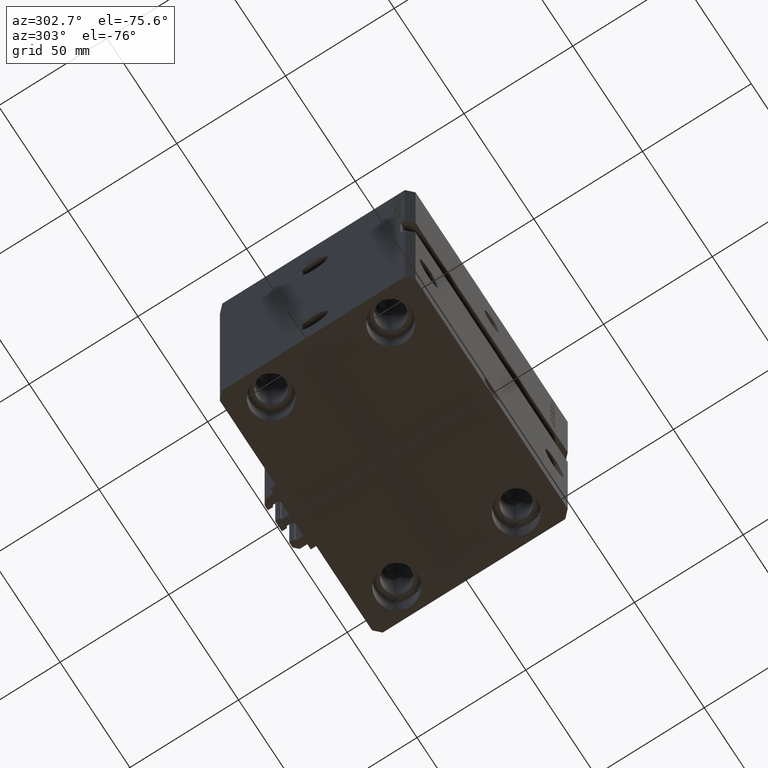
[diagram: clean part render]
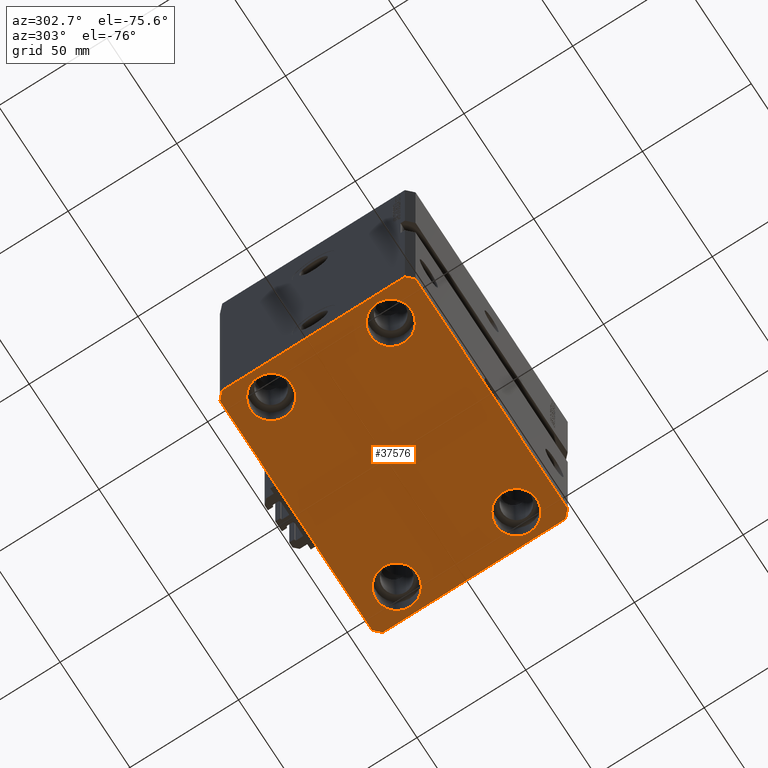
[diagram: same view with one face highlighted and labeled with its STEP entity id]
A machine part, auxiliary view. The second image highlights one B-rep face of the part: STEP entity #37576.
In plain terms, the highlighted planar face has unit normal (0, 0, 1).
Its self-contained STEP definition (entity closure, byte-faithful):
#174 = DIRECTION ( 'NONE',  ( -0.7071067811865483499, -0.7071067811865466846, 0.000000000000000000 ) ) ;
#1237 = VECTOR ( 'NONE', #35899, 999.9999999999998863 ) ;
#1507 = LINE ( 'NONE', #49121, #36341 ) ;
#1647 = EDGE_CURVE ( 'NONE', #21930, #51145, #4687, .T. ) ;
#1712 = CARTESIAN_POINT ( 'NONE',  ( -45.00000000000000000, 27.50000000000000355, -135.0000000000000000 ) ) ;
#1845 = EDGE_CURVE ( 'NONE', #51145, #21930, #9716, .T. ) ;
#2146 = LINE ( 'NONE', #18204, #10916 ) ;
#2177 = ORIENTED_EDGE ( 'NONE', *, *, #40131, .F. ) ;
#2242 = CARTESIAN_POINT ( 'NONE',  ( 45.00000000000000000, 27.50000000000001776, -135.0000000000000000 ) ) ;
#2274 = EDGE_LOOP ( 'NONE', ( #51595, #11979 ) ) ;
#2434 = EDGE_CURVE ( 'NONE', #40000, #31728, #34371, .T. ) ;
#3003 = VERTEX_POINT ( 'NONE', #38717 ) ;
#3258 = CARTESIAN_POINT ( 'NONE',  ( -54.50000000000000000, 27.50000000000000355, -135.0000000000000000 ) ) ;
#3438 = EDGE_CURVE ( 'NONE', #31728, #23285, #16751, .T. ) ;
#4165 = EDGE_CURVE ( 'NONE', #26657, #12912, #13173, .T. ) ;
#4465 = CARTESIAN_POINT ( 'NONE',  ( 54.50000000000000711, -44.99999999999998579, -135.0000000000000000 ) ) ;
#4687 = CIRCLE ( 'NONE', #8024, 9.500000000000001776 ) ;
#6260 = VECTOR ( 'NONE', #34662, 1000.000000000000000 ) ;
#6382 = VECTOR ( 'NONE', #46761, 1000.000000000000000 ) ;
#6481 = ORIENTED_EDGE ( 'NONE', *, *, #1845, .T. ) ;
#7650 = ORIENTED_EDGE ( 'NONE', *, *, #4165, .T. ) ;
#8024 = AXIS2_PLACEMENT_3D ( 'NONE', #49069, #49332, #21441 ) ;
#8664 = CARTESIAN_POINT ( 'NONE',  ( 54.50000000000058975, 45.00000000000002842, -135.0000000000000000 ) ) ;
#8767 = CARTESIAN_POINT ( 'NONE',  ( -57.50000000000000711, -42.00000000000000711, -135.0000000000000000 ) ) ;
#9087 = DIRECTION ( 'NONE',  ( 1.000000000000000000, 0.000000000000000000, 0.000000000000000000 ) ) ;
#9716 = CIRCLE ( 'NONE', #13932, 9.500000000000001776 ) ;
#10916 = VECTOR ( 'NONE', #22911, 1000.000000000000000 ) ;
#10978 = DIRECTION ( 'NONE',  ( -0.000000000000000000, -0.000000000000000000, 1.000000000000000000 ) ) ;
#11027 = CIRCLE ( 'NONE', #40397, 9.500000000000001776 ) ;
#11100 = DIRECTION ( 'NONE',  ( 0.000000000000000000, 0.000000000000000000, 1.000000000000000000 ) ) ;
#11270 = LINE ( 'NONE', #52022, #44468 ) ;
#11617 = CARTESIAN_POINT ( 'NONE',  ( 54.50000000000000000, 27.50000000000001776, -135.0000000000000000 ) ) ;
#11979 = ORIENTED_EDGE ( 'NONE', *, *, #17477, .T. ) ;
#12339 = DIRECTION ( 'NONE',  ( 1.000000000000000000, 0.000000000000000000, 0.000000000000000000 ) ) ;
#12368 = VERTEX_POINT ( 'NONE', #4465 ) ;
#12912 = VERTEX_POINT ( 'NONE', #36846 ) ;
#12960 = CARTESIAN_POINT ( 'NONE',  ( 54.50000000000000000, -27.49999999999999645, -135.0000000000000000 ) ) ;
#13173 = CIRCLE ( 'NONE', #30788, 9.500000000000001776 ) ;
#13597 = EDGE_CURVE ( 'NONE', #45398, #21581, #11270, .T. ) ;
#13779 = VERTEX_POINT ( 'NONE', #20970 ) ;
#13839 = CIRCLE ( 'NONE', #19731, 9.500000000000001776 ) ;
#13932 = AXIS2_PLACEMENT_3D ( 'NONE', #2242, #18296, #31832 ) ;
#14053 = VERTEX_POINT ( 'NONE', #28779 ) ;
#14186 = CARTESIAN_POINT ( 'NONE',  ( -45.00000000000000000, -27.49999999999999645, -135.0000000000000000 ) ) ;
#14936 = CARTESIAN_POINT ( 'NONE',  ( 45.00000000000000000, -27.49999999999999645, -135.0000000000000000 ) ) ;
#15046 = FACE_BOUND ( 'NONE', #41772, .T. ) ;
#15620 = EDGE_CURVE ( 'NONE', #23285, #45398, #2146, .T. ) ;
#16296 = EDGE_LOOP ( 'NONE', ( #34548, #48786, #28791, #2177, #41673, #46277, #29800, #48125 ) ) ;
#16402 = EDGE_LOOP ( 'NONE', ( #6481, #47524 ) ) ;
#16751 = LINE ( 'NONE', #36196, #51767 ) ;
#17477 = EDGE_CURVE ( 'NONE', #19508, #14053, #44576, .T. ) ;
#18204 = CARTESIAN_POINT ( 'NONE',  ( -57.49999999999998579, 42.00000000000000711, -135.0000000000000000 ) ) ;
#18296 = DIRECTION ( 'NONE',  ( -0.000000000000000000, -0.000000000000000000, 1.000000000000000000 ) ) ;
#18694 = DIRECTION ( 'NONE',  ( 1.000000000000000000, 1.273191542001326317E-16, 0.000000000000000000 ) ) ;
#19365 = CARTESIAN_POINT ( 'NONE',  ( 57.50000000000055422, 41.99999999999997868, -135.0000000000000000 ) ) ;
#19508 = VERTEX_POINT ( 'NONE', #12960 ) ;
#19731 = AXIS2_PLACEMENT_3D ( 'NONE', #14186, #33886, #26266 ) ;
#20970 = CARTESIAN_POINT ( 'NONE',  ( 57.50000000000055422, 41.99999999999997868, -135.0000000000000000 ) ) ;
#21441 = DIRECTION ( 'NONE',  ( 1.000000000000000000, 0.000000000000000000, 0.000000000000000000 ) ) ;
#21491 = EDGE_CURVE ( 'NONE', #25305, #32651, #11027, .T. ) ;
#21581 = VERTEX_POINT ( 'NONE', #41409 ) ;
#21798 = CARTESIAN_POINT ( 'NONE',  ( 54.50000000000000711, -44.99999999999998579, -135.0000000000000000 ) ) ;
#21930 = VERTEX_POINT ( 'NONE', #11617 ) ;
#22911 = DIRECTION ( 'NONE',  ( -2.478176394252581141E-16, -1.000000000000000000, 0.000000000000000000 ) ) ;
#23285 = VERTEX_POINT ( 'NONE', #47736 ) ;
#23325 = CARTESIAN_POINT ( 'NONE',  ( 54.50000000000058975, 45.00000000000002842, -135.0000000000000000 ) ) ;
#23436 = FACE_BOUND ( 'NONE', #2274, .T. ) ;
#24151 = CARTESIAN_POINT ( 'NONE',  ( -45.00000000000000000, -27.49999999999999645, -135.0000000000000000 ) ) ;
#24269 = EDGE_CURVE ( 'NONE', #14053, #19508, #49430, .T. ) ;
#24641 = VECTOR ( 'NONE', #18694, 1000.000000000000000 ) ;
#24835 = ORIENTED_EDGE ( 'NONE', *, *, #21491, .T. ) ;
#25305 = VERTEX_POINT ( 'NONE', #33723 ) ;
#25491 = AXIS2_PLACEMENT_3D ( 'NONE', #32029, #51796, #12339 ) ;
#26266 = DIRECTION ( 'NONE',  ( 1.000000000000000000, 0.000000000000000000, 0.000000000000000000 ) ) ;
#26461 = DIRECTION ( 'NONE',  ( 1.000000000000000000, 0.000000000000000000, 0.000000000000000000 ) ) ;
#26657 = VERTEX_POINT ( 'NONE', #39507 ) ;
#26975 = LINE ( 'NONE', #19365, #1237 ) ;
#27829 = DIRECTION ( 'NONE',  ( 1.000000000000000000, 0.000000000000000000, 0.000000000000000000 ) ) ;
#28779 = CARTESIAN_POINT ( 'NONE',  ( 35.50000000000000000, -27.49999999999999645, -135.0000000000000000 ) ) ;
#28791 = ORIENTED_EDGE ( 'NONE', *, *, #36747, .F. ) ;
#29800 = ORIENTED_EDGE ( 'NONE', *, *, #15620, .F. ) ;
#29869 = CARTESIAN_POINT ( 'NONE',  ( 45.00000000000000000, -27.49999999999999645, -135.0000000000000000 ) ) ;
#30231 = CARTESIAN_POINT ( 'NONE',  ( -54.50000000000000711, -45.00000000000000000, -135.0000000000000000 ) ) ;
#30788 = AXIS2_PLACEMENT_3D ( 'NONE', #24151, #47827, #27829 ) ;
#31310 = FACE_OUTER_BOUND ( 'NONE', #16296, .T. ) ;
#31728 = VERTEX_POINT ( 'NONE', #44008 ) ;
#31832 = DIRECTION ( 'NONE',  ( 1.000000000000000000, 0.000000000000000000, 0.000000000000000000 ) ) ;
#32029 = CARTESIAN_POINT ( 'NONE',  ( -45.00000000000000000, 27.50000000000000355, -135.0000000000000000 ) ) ;
#32651 = VERTEX_POINT ( 'NONE', #3258 ) ;
#32797 = AXIS2_PLACEMENT_3D ( 'NONE', #14936, #10978, #50703 ) ;
#32994 = DIRECTION ( 'NONE',  ( -0.000000000000000000, -0.000000000000000000, 1.000000000000000000 ) ) ;
#33276 = CARTESIAN_POINT ( 'NONE',  ( 35.50000000000000000, 27.50000000000001776, -135.0000000000000000 ) ) ;
#33723 = CARTESIAN_POINT ( 'NONE',  ( -35.50000000000000000, 27.50000000000000355, -135.0000000000000000 ) ) ;
#33886 = DIRECTION ( 'NONE',  ( -0.000000000000000000, -0.000000000000000000, 1.000000000000000000 ) ) ;
#34371 = LINE ( 'NONE', #23325, #6382 ) ;
#34548 = ORIENTED_EDGE ( 'NONE', *, *, #2434, .F. ) ;
#34662 = DIRECTION ( 'NONE',  ( 0.7071067811865483499, 0.7071067811865466846, 0.000000000000000000 ) ) ;
#35266 = FACE_BOUND ( 'NONE', #16402, .T. ) ;
#35597 = ORIENTED_EDGE ( 'NONE', *, *, #38107, .T. ) ;
#35899 = DIRECTION ( 'NONE',  ( -0.7071067811865376918, 0.7071067811865574537, 0.000000000000000000 ) ) ;
#36196 = CARTESIAN_POINT ( 'NONE',  ( -54.49999999999999289, 45.00000000000000000, -135.0000000000000000 ) ) ;
#36341 = VECTOR ( 'NONE', #45168, 1000.000000000000000 ) ;
#36378 = AXIS2_PLACEMENT_3D ( 'NONE', #38699, #11100, #51327 ) ;
#36747 = EDGE_CURVE ( 'NONE', #3003, #13779, #1507, .T. ) ;
#36846 = CARTESIAN_POINT ( 'NONE',  ( -35.50000000000000000, -27.49999999999999645, -135.0000000000000000 ) ) ;
#37576 = ADVANCED_FACE ( 'NONE', ( #15046, #23436, #35266, #39475, #31310 ), #42665, .F. ) ;
#37973 = EDGE_CURVE ( 'NONE', #21581, #12368, #39419, .T. ) ;
#38107 = EDGE_CURVE ( 'NONE', #32651, #25305, #38903, .T. ) ;
#38699 = CARTESIAN_POINT ( 'NONE',  ( 0.000000000000000000, 0.000000000000000000, -135.0000000000000000 ) ) ;
#38717 = CARTESIAN_POINT ( 'NONE',  ( 57.50000000000000711, -41.99999999999998579, -135.0000000000000000 ) ) ;
#38903 = CIRCLE ( 'NONE', #25491, 9.500000000000001776 ) ;
#39419 = LINE ( 'NONE', #30231, #24641 ) ;
#39475 = FACE_BOUND ( 'NONE', #45884, .T. ) ;
#39507 = CARTESIAN_POINT ( 'NONE',  ( -54.50000000000000000, -27.49999999999999645, -135.0000000000000000 ) ) ;
#40000 = VERTEX_POINT ( 'NONE', #8664 ) ;
#40131 = EDGE_CURVE ( 'NONE', #12368, #3003, #46783, .T. ) ;
#40186 = AXIS2_PLACEMENT_3D ( 'NONE', #29869, #46468, #26461 ) ;
#40397 = AXIS2_PLACEMENT_3D ( 'NONE', #1712, #32994, #9087 ) ;
#40742 = ORIENTED_EDGE ( 'NONE', *, *, #41114, .T. ) ;
#41114 = EDGE_CURVE ( 'NONE', #12912, #26657, #13839, .T. ) ;
#41409 = CARTESIAN_POINT ( 'NONE',  ( -54.50000000000000711, -45.00000000000000000, -135.0000000000000000 ) ) ;
#41432 = EDGE_CURVE ( 'NONE', #13779, #40000, #26975, .T. ) ;
#41673 = ORIENTED_EDGE ( 'NONE', *, *, #37973, .F. ) ;
#41772 = EDGE_LOOP ( 'NONE', ( #7650, #40742 ) ) ;
#42665 = PLANE ( 'NONE',  #36378 ) ;
#44008 = CARTESIAN_POINT ( 'NONE',  ( -54.49999999999999289, 45.00000000000000000, -135.0000000000000000 ) ) ;
#44468 = VECTOR ( 'NONE', #51511, 1000.000000000000114 ) ;
#44576 = CIRCLE ( 'NONE', #32797, 9.500000000000001776 ) ;
#45168 = DIRECTION ( 'NONE',  ( 6.443258625056715108E-15, 1.000000000000000000, 0.000000000000000000 ) ) ;
#45398 = VERTEX_POINT ( 'NONE', #8767 ) ;
#45884 = EDGE_LOOP ( 'NONE', ( #35597, #24835 ) ) ;
#46277 = ORIENTED_EDGE ( 'NONE', *, *, #13597, .F. ) ;
#46468 = DIRECTION ( 'NONE',  ( -0.000000000000000000, -0.000000000000000000, 1.000000000000000000 ) ) ;
#46761 = DIRECTION ( 'NONE',  ( -1.000000000000000000, -2.546383084002639322E-16, 0.000000000000000000 ) ) ;
#46783 = LINE ( 'NONE', #21798, #6260 ) ;
#47524 = ORIENTED_EDGE ( 'NONE', *, *, #1647, .T. ) ;
#47736 = CARTESIAN_POINT ( 'NONE',  ( -57.49999999999998579, 42.00000000000000711, -135.0000000000000000 ) ) ;
#47827 = DIRECTION ( 'NONE',  ( -0.000000000000000000, -0.000000000000000000, 1.000000000000000000 ) ) ;
#48125 = ORIENTED_EDGE ( 'NONE', *, *, #3438, .F. ) ;
#48786 = ORIENTED_EDGE ( 'NONE', *, *, #41432, .F. ) ;
#49069 = CARTESIAN_POINT ( 'NONE',  ( 45.00000000000000000, 27.50000000000001776, -135.0000000000000000 ) ) ;
#49121 = CARTESIAN_POINT ( 'NONE',  ( 57.50000000000000711, -41.99999999999998579, -135.0000000000000000 ) ) ;
#49332 = DIRECTION ( 'NONE',  ( -0.000000000000000000, -0.000000000000000000, 1.000000000000000000 ) ) ;
#49430 = CIRCLE ( 'NONE', #40186, 9.500000000000001776 ) ;
#50703 = DIRECTION ( 'NONE',  ( 1.000000000000000000, 0.000000000000000000, 0.000000000000000000 ) ) ;
#51145 = VERTEX_POINT ( 'NONE', #33276 ) ;
#51327 = DIRECTION ( 'NONE',  ( 1.000000000000000000, 0.000000000000000000, -0.000000000000000000 ) ) ;
#51511 = DIRECTION ( 'NONE',  ( 0.7071067811865491270, -0.7071067811865459074, 0.000000000000000000 ) ) ;
#51595 = ORIENTED_EDGE ( 'NONE', *, *, #24269, .T. ) ;
#51767 = VECTOR ( 'NONE', #174, 1000.000000000000000 ) ;
#51796 = DIRECTION ( 'NONE',  ( -0.000000000000000000, -0.000000000000000000, 1.000000000000000000 ) ) ;
#52022 = CARTESIAN_POINT ( 'NONE',  ( -57.50000000000000711, -42.00000000000000711, -135.0000000000000000 ) ) ;